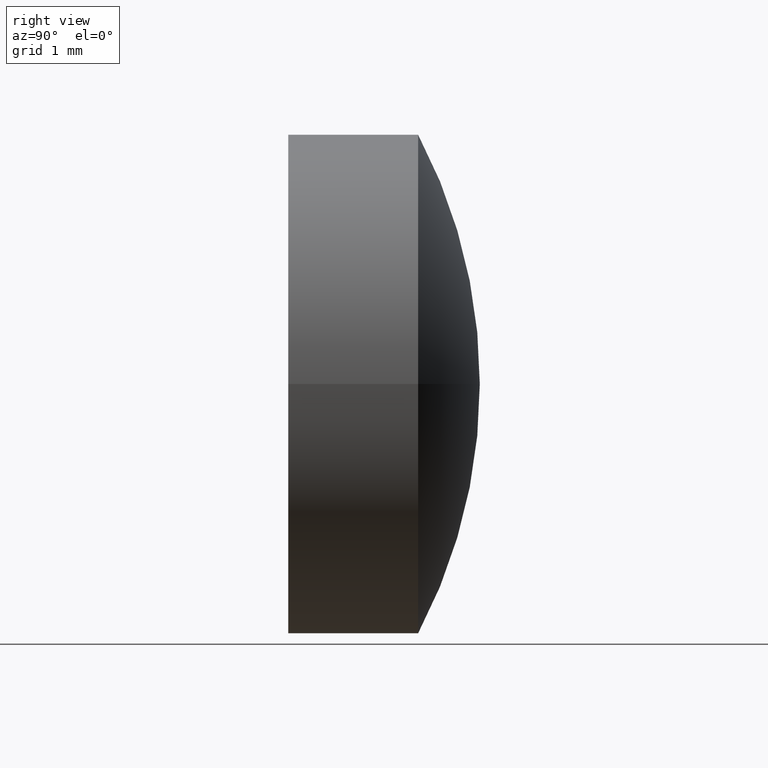
[diagram: clean part render]
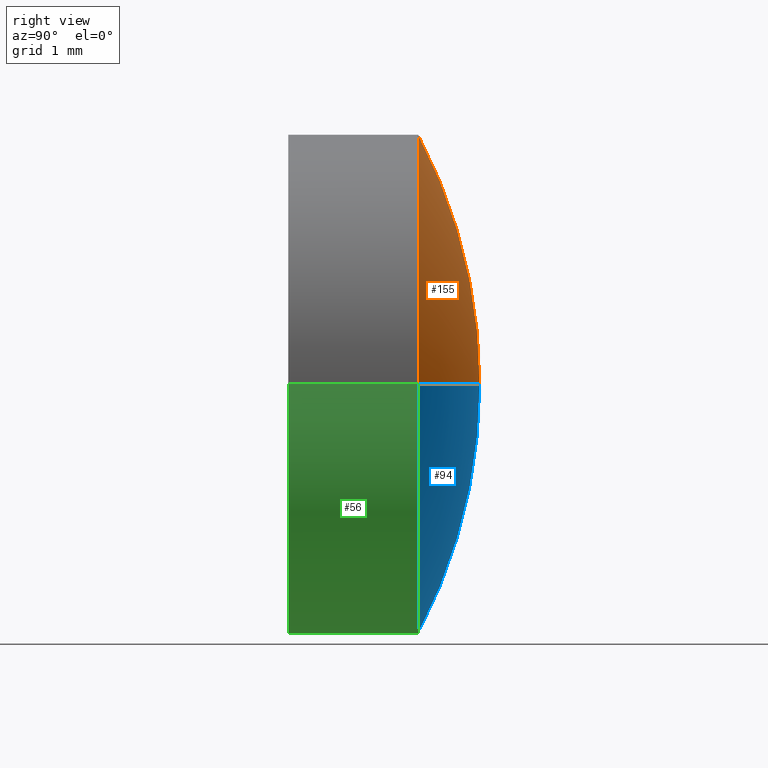
[diagram: same view with three faces highlighted in distinct colors, each labeled with its STEP entity id]
A machine part, right view with three faces highlighted in distinct colors.
Their STEP definitions:

[orange] entity #155 — the highlighted toroidal blend (fillet) surface has major radius 0.0022 mm and minor (blend) radius 6.46 mm.
#6 = DIRECTION ( 'NONE',  ( 0.000000000000000000, -0.000000000000000000, -1.000000000000000000 ) ) ;
#10 = CIRCLE ( 'NONE', #59, 3.000000000000000000 ) ;
#20 = CARTESIAN_POINT ( 'NONE',  ( 6.649208635946257662E-17, -4.159999625418450364, 0.000000000000000000 ) ) ;
#21 = CIRCLE ( 'NONE', #78, 6.459999999999999076 ) ;
#33 = ORIENTED_EDGE ( 'NONE', *, *, #162, .T. ) ;
#35 = CARTESIAN_POINT ( 'NONE',  ( -0.002199907603218613592, -4.159999625418450364, -2.694109804701682205E-19 ) ) ;
#36 = CARTESIAN_POINT ( 'NONE',  ( -2.491890008699830848E-17, 1.559999999999999609, 0.000000000000000000 ) ) ;
#39 = EDGE_CURVE ( 'NONE', #183, #87, #10, .T. ) ;
#41 = CIRCLE ( 'NONE', #161, 6.459999999999999076 ) ;
#44 = VERTEX_POINT ( 'NONE', #91 ) ;
#46 = EDGE_CURVE ( 'NONE', #183, #44, #21, .T. ) ;
#54 = DIRECTION ( 'NONE',  ( -1.224646799147353207E-16, -1.956208412167640239E-33, 1.000000000000000000 ) ) ;
#59 = AXIS2_PLACEMENT_3D ( 'NONE', #36, #177, #106 ) ;
#63 = AXIS2_PLACEMENT_3D ( 'NONE', #20, #88, #132 ) ;
#66 = CARTESIAN_POINT ( 'NONE',  ( 3.000000000000000000, 1.559999999999999831, 3.673940397442059375E-16 ) ) ;
#74 = CARTESIAN_POINT ( 'NONE',  ( -3.000000000000000000, 1.559999999999999831, 0.000000000000000000 ) ) ;
#75 = DIRECTION ( 'NONE',  ( -1.000000000000000000, 0.000000000000000000, 0.000000000000000000 ) ) ;
#78 = AXIS2_PLACEMENT_3D ( 'NONE', #151, #6, #75 ) ;
#87 = VERTEX_POINT ( 'NONE', #66 ) ;
#88 = DIRECTION ( 'NONE',  ( -1.597365390192199688E-17, 1.000000000000000000, -0.000000000000000000 ) ) ;
#91 = CARTESIAN_POINT ( 'NONE',  ( -3.673940397442058882E-17, 2.299999999999999822, 0.000000000000000000 ) ) ;
#95 = ORIENTED_EDGE ( 'NONE', *, *, #39, .T. ) ;
#106 = DIRECTION ( 'NONE',  ( -1.000000000000000000, 0.000000000000000000, 0.000000000000000000 ) ) ;
#111 = EDGE_LOOP ( 'NONE', ( #95, #33, #163 ) ) ;
#132 = DIRECTION ( 'NONE',  ( -1.000000000000000000, -1.597365390192199688E-17, 0.000000000000000000 ) ) ;
#142 = TOROIDAL_SURFACE ( 'NONE', #63, -0.002199907603218680379, 6.459999999999999076 ) ;
#148 = DIRECTION ( 'NONE',  ( 1.000000000000000000, 0.000000000000000000, 1.224646799147352961E-16 ) ) ;
#151 = CARTESIAN_POINT ( 'NONE',  ( 0.002199907603218746732, -4.159999625418450364, 0.000000000000000000 ) ) ;
#155 = ADVANCED_FACE ( 'NONE', ( #175 ), #142, .T. ) ;
#161 = AXIS2_PLACEMENT_3D ( 'NONE', #35, #54, #148 ) ;
#162 = EDGE_CURVE ( 'NONE', #87, #44, #41, .T. ) ;
#163 = ORIENTED_EDGE ( 'NONE', *, *, #46, .F. ) ;
#175 = FACE_OUTER_BOUND ( 'NONE', #111, .T. ) ;
#177 = DIRECTION ( 'NONE',  ( -1.597365390192199688E-17, 1.000000000000000000, -0.000000000000000000 ) ) ;
#183 = VERTEX_POINT ( 'NONE', #74 ) ;

[blue] entity #94 — the highlighted toroidal blend (fillet) surface has major radius 0.0022 mm and minor (blend) radius 6.46 mm.
#5 = CARTESIAN_POINT ( 'NONE',  ( -2.491890008699830848E-17, 1.559999999999999609, 0.000000000000000000 ) ) ;
#6 = DIRECTION ( 'NONE',  ( 0.000000000000000000, -0.000000000000000000, -1.000000000000000000 ) ) ;
#13 = TOROIDAL_SURFACE ( 'NONE', #97, -0.002199907603218680379, 6.459999999999999076 ) ;
#17 = ORIENTED_EDGE ( 'NONE', *, *, #150, .T. ) ;
#21 = CIRCLE ( 'NONE', #78, 6.459999999999999076 ) ;
#25 = CIRCLE ( 'NONE', #50, 3.000000000000000000 ) ;
#29 = FACE_OUTER_BOUND ( 'NONE', #171, .T. ) ;
#35 = CARTESIAN_POINT ( 'NONE',  ( -0.002199907603218613592, -4.159999625418450364, -2.694109804701682205E-19 ) ) ;
#41 = CIRCLE ( 'NONE', #161, 6.459999999999999076 ) ;
#44 = VERTEX_POINT ( 'NONE', #91 ) ;
#46 = EDGE_CURVE ( 'NONE', #183, #44, #21, .T. ) ;
#50 = AXIS2_PLACEMENT_3D ( 'NONE', #5, #53, #102 ) ;
#53 = DIRECTION ( 'NONE',  ( -1.597365390192199688E-17, 1.000000000000000000, -0.000000000000000000 ) ) ;
#54 = DIRECTION ( 'NONE',  ( -1.224646799147353207E-16, -1.956208412167640239E-33, 1.000000000000000000 ) ) ;
#66 = CARTESIAN_POINT ( 'NONE',  ( 3.000000000000000000, 1.559999999999999831, 3.673940397442059375E-16 ) ) ;
#74 = CARTESIAN_POINT ( 'NONE',  ( -3.000000000000000000, 1.559999999999999831, 0.000000000000000000 ) ) ;
#75 = DIRECTION ( 'NONE',  ( -1.000000000000000000, 0.000000000000000000, 0.000000000000000000 ) ) ;
#78 = AXIS2_PLACEMENT_3D ( 'NONE', #151, #6, #75 ) ;
#80 = ORIENTED_EDGE ( 'NONE', *, *, #162, .F. ) ;
#87 = VERTEX_POINT ( 'NONE', #66 ) ;
#91 = CARTESIAN_POINT ( 'NONE',  ( -3.673940397442058882E-17, 2.299999999999999822, 0.000000000000000000 ) ) ;
#94 = ADVANCED_FACE ( 'NONE', ( #29 ), #13, .T. ) ;
#97 = AXIS2_PLACEMENT_3D ( 'NONE', #184, #200, #160 ) ;
#102 = DIRECTION ( 'NONE',  ( -1.000000000000000000, 0.000000000000000000, 0.000000000000000000 ) ) ;
#148 = DIRECTION ( 'NONE',  ( 1.000000000000000000, 0.000000000000000000, 1.224646799147352961E-16 ) ) ;
#150 = EDGE_CURVE ( 'NONE', #87, #183, #25, .T. ) ;
#151 = CARTESIAN_POINT ( 'NONE',  ( 0.002199907603218746732, -4.159999625418450364, 0.000000000000000000 ) ) ;
#160 = DIRECTION ( 'NONE',  ( -1.000000000000000000, -1.597365390192199688E-17, 0.000000000000000000 ) ) ;
#161 = AXIS2_PLACEMENT_3D ( 'NONE', #35, #54, #148 ) ;
#162 = EDGE_CURVE ( 'NONE', #87, #44, #41, .T. ) ;
#171 = EDGE_LOOP ( 'NONE', ( #80, #17, #188 ) ) ;
#183 = VERTEX_POINT ( 'NONE', #74 ) ;
#184 = CARTESIAN_POINT ( 'NONE',  ( 6.649208635946257662E-17, -4.159999625418450364, 0.000000000000000000 ) ) ;
#188 = ORIENTED_EDGE ( 'NONE', *, *, #46, .T. ) ;
#200 = DIRECTION ( 'NONE',  ( -1.597365390192199688E-17, 1.000000000000000000, -0.000000000000000000 ) ) ;

[green] entity #56 — the highlighted cylindrical surface (partial cylindrical patch) has radius 3 mm, axis along (-0, 1, -0).
#4 = CARTESIAN_POINT ( 'NONE',  ( -3.000000000000000000, -4.792096170576599372E-17, 0.000000000000000000 ) ) ;
#5 = CARTESIAN_POINT ( 'NONE',  ( -2.491890008699830848E-17, 1.559999999999999609, 0.000000000000000000 ) ) ;
#12 = DIRECTION ( 'NONE',  ( -1.597365390192199380E-17, 1.000000000000000000, -0.000000000000000000 ) ) ;
#15 = DIRECTION ( 'NONE',  ( -1.597365390192199380E-17, 1.000000000000000000, -0.000000000000000000 ) ) ;
#25 = CIRCLE ( 'NONE', #50, 3.000000000000000000 ) ;
#27 = DIRECTION ( 'NONE',  ( -1.597365390192199688E-17, 1.000000000000000000, -0.000000000000000000 ) ) ;
#40 = VECTOR ( 'NONE', #15, 1000.000000000000000 ) ;
#47 = LINE ( 'NONE', #98, #40 ) ;
#50 = AXIS2_PLACEMENT_3D ( 'NONE', #5, #53, #102 ) ;
#53 = DIRECTION ( 'NONE',  ( -1.597365390192199688E-17, 1.000000000000000000, -0.000000000000000000 ) ) ;
#56 = ADVANCED_FACE ( 'NONE', ( #133 ), #192, .T. ) ;
#62 = ORIENTED_EDGE ( 'NONE', *, *, #150, .F. ) ;
#66 = CARTESIAN_POINT ( 'NONE',  ( 3.000000000000000000, 1.559999999999999831, 3.673940397442059375E-16 ) ) ;
#69 = EDGE_CURVE ( 'NONE', #72, #87, #182, .T. ) ;
#72 = VERTEX_POINT ( 'NONE', #110 ) ;
#74 = CARTESIAN_POINT ( 'NONE',  ( -3.000000000000000000, 1.559999999999999831, 0.000000000000000000 ) ) ;
#83 = CARTESIAN_POINT ( 'NONE',  ( 0.000000000000000000, 0.000000000000000000, 0.000000000000000000 ) ) ;
#87 = VERTEX_POINT ( 'NONE', #66 ) ;
#96 = CARTESIAN_POINT ( 'NONE',  ( 3.000000000000000000, 2.299999999999999822, 3.673940397442059868E-16 ) ) ;
#98 = CARTESIAN_POINT ( 'NONE',  ( -3.000000000000000000, 2.299999999999999822, 0.000000000000000000 ) ) ;
#101 = ORIENTED_EDGE ( 'NONE', *, *, #143, .T. ) ;
#102 = DIRECTION ( 'NONE',  ( -1.000000000000000000, 0.000000000000000000, 0.000000000000000000 ) ) ;
#105 = VECTOR ( 'NONE', #12, 1000.000000000000000 ) ;
#110 = CARTESIAN_POINT ( 'NONE',  ( 3.000000000000000000, 4.792096170576599372E-17, 3.673940397442059868E-16 ) ) ;
#113 = AXIS2_PLACEMENT_3D ( 'NONE', #123, #27, #158 ) ;
#120 = EDGE_CURVE ( 'NONE', #197, #183, #47, .T. ) ;
#123 = CARTESIAN_POINT ( 'NONE',  ( -3.673940397442058882E-17, 2.299999999999999822, 0.000000000000000000 ) ) ;
#131 = ORIENTED_EDGE ( 'NONE', *, *, #120, .T. ) ;
#133 = FACE_OUTER_BOUND ( 'NONE', #174, .T. ) ;
#141 = ORIENTED_EDGE ( 'NONE', *, *, #69, .F. ) ;
#143 = EDGE_CURVE ( 'NONE', #72, #197, #159, .T. ) ;
#144 = DIRECTION ( 'NONE',  ( -1.597365390192199688E-17, 1.000000000000000000, -0.000000000000000000 ) ) ;
#150 = EDGE_CURVE ( 'NONE', #87, #183, #25, .T. ) ;
#153 = AXIS2_PLACEMENT_3D ( 'NONE', #83, #144, #190 ) ;
#158 = DIRECTION ( 'NONE',  ( -1.000000000000000000, 0.000000000000000000, 0.000000000000000000 ) ) ;
#159 = CIRCLE ( 'NONE', #153, 3.000000000000000000 ) ;
#174 = EDGE_LOOP ( 'NONE', ( #141, #101, #131, #62 ) ) ;
#182 = LINE ( 'NONE', #96, #105 ) ;
#183 = VERTEX_POINT ( 'NONE', #74 ) ;
#190 = DIRECTION ( 'NONE',  ( -1.000000000000000000, -1.597365390192199688E-17, 0.000000000000000000 ) ) ;
#192 = CYLINDRICAL_SURFACE ( 'NONE', #113, 3.000000000000000000 ) ;
#197 = VERTEX_POINT ( 'NONE', #4 ) ;